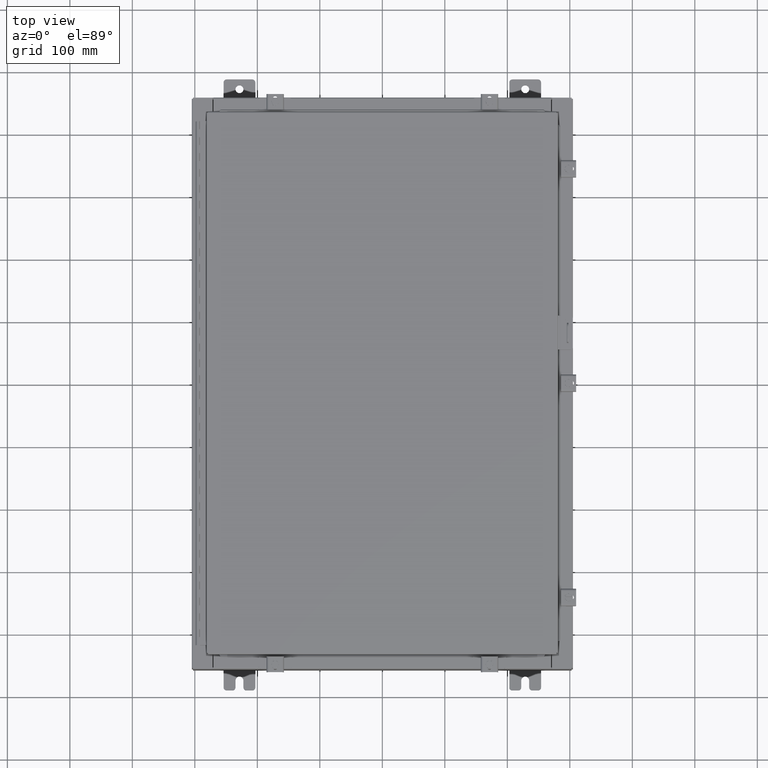
[diagram: clean part render]
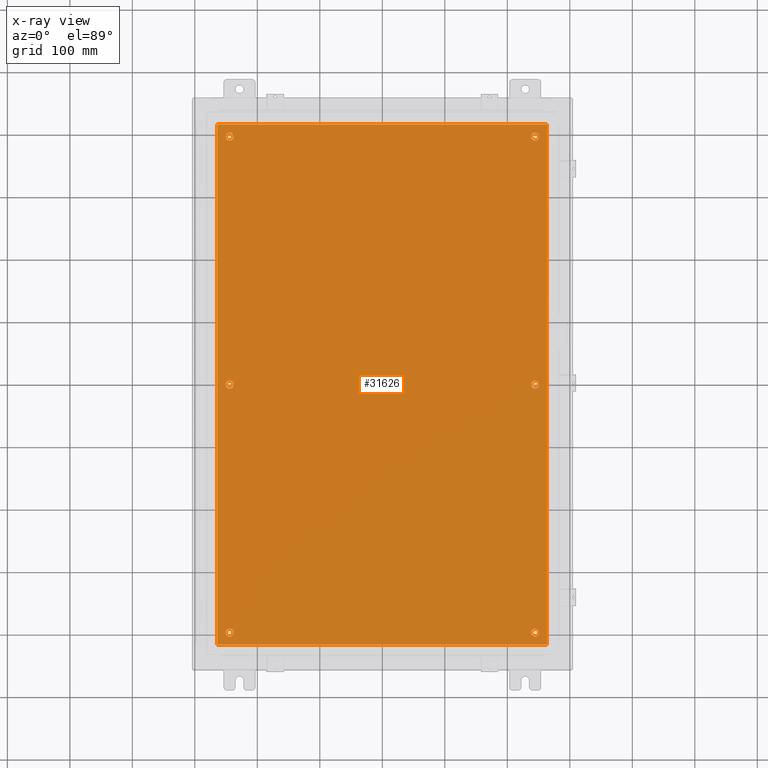
[diagram: x-ray — body ghosted, one internal face saturated and labeled with its STEP entity id]
A machine part, top view, then the same camera in x-ray: the body is ghosted and one INTERNAL B-rep face — a face not visible from any outside direction — is saturated and labeled: STEP entity #31626.
In plain terms, the highlighted planar face has unit normal (0, 0, -1).
Its self-contained STEP definition (entity closure, byte-faithful):
#198 = CARTESIAN_POINT ( 'NONE',  ( 9.875000000000007100, 2.620299400612403500E-015, -0.1039999999999999800 ) ) ;
#259 = CARTESIAN_POINT ( 'NONE',  ( -9.625000000000007100, 15.62500000000000200, -0.1039999999999999800 ) ) ;
#505 = VERTEX_POINT ( 'NONE', #34631 ) ;
#568 = CARTESIAN_POINT ( 'NONE',  ( 9.625000000000007100, 2.620299400612403500E-015, -0.1039999999999999800 ) ) ;
#889 = DIRECTION ( 'NONE',  ( -0.0000000000000000000, -0.0000000000000000000, 1.000000000000000000 ) ) ;
#942 = ORIENTED_EDGE ( 'NONE', *, *, #11413, .T. ) ;
#1768 = CIRCLE ( 'NONE', #8337, 0.2500000000000008900 ) ;
#2536 = ORIENTED_EDGE ( 'NONE', *, *, #10650, .T. ) ;
#3079 = EDGE_LOOP ( 'NONE', ( #42310, #32393 ) ) ;
#3216 = ORIENTED_EDGE ( 'NONE', *, *, #12240, .T. ) ;
#3257 = AXIS2_PLACEMENT_3D ( 'NONE', #33868, #30023, #9999 ) ;
#3483 = FACE_BOUND ( 'NONE', #29797, .T. ) ;
#3513 = DIRECTION ( 'NONE',  ( -0.0000000000000000000, -0.0000000000000000000, 1.000000000000000000 ) ) ;
#3663 = CIRCLE ( 'NONE', #37118, 0.2500000000000008900 ) ;
#3952 = CARTESIAN_POINT ( 'NONE',  ( -9.875000000000007100, 15.62500000000000200, -0.1039999999999999800 ) ) ;
#4083 = ORIENTED_EDGE ( 'NONE', *, *, #26744, .T. ) ;
#4846 = VERTEX_POINT ( 'NONE', #9053 ) ;
#4949 = LINE ( 'NONE', #20038, #30153 ) ;
#5275 = CARTESIAN_POINT ( 'NONE',  ( -9.625000000000007100, -15.62500000000000200, -0.1039999999999999800 ) ) ;
#5317 = CARTESIAN_POINT ( 'NONE',  ( 9.875000000000007100, -15.62500000000000200, -0.1039999999999999800 ) ) ;
#5398 = CARTESIAN_POINT ( 'NONE',  ( 0.0000000000000000000, 0.0000000000000000000, -0.1039999999999999800 ) ) ;
#6251 = EDGE_LOOP ( 'NONE', ( #39220, #39873 ) ) ;
#6878 = EDGE_CURVE ( 'NONE', #17479, #505, #29046, .T. ) ;
#7147 = CARTESIAN_POINT ( 'NONE',  ( -10.38300000000000100, -16.38299999999999600, -0.1040000000000009100 ) ) ;
#8154 = AXIS2_PLACEMENT_3D ( 'NONE', #42337, #35710, #25016 ) ;
#8247 = DIRECTION ( 'NONE',  ( -0.0000000000000000000, -0.0000000000000000000, 1.000000000000000000 ) ) ;
#8266 = CARTESIAN_POINT ( 'NONE',  ( -9.875000000000005300, 2.934704822324310800E-016, -0.1039999999999999800 ) ) ;
#8292 = VERTEX_POINT ( 'NONE', #5317 ) ;
#8337 = AXIS2_PLACEMENT_3D ( 'NONE', #5275, #8247, #11966 ) ;
#9053 = CARTESIAN_POINT ( 'NONE',  ( -10.38300000000000100, 16.38300000000000300, -0.1039999999999987600 ) ) ;
#9488 = EDGE_CURVE ( 'NONE', #42050, #9807, #32545, .T. ) ;
#9807 = VERTEX_POINT ( 'NONE', #22251 ) ;
#9937 = EDGE_LOOP ( 'NONE', ( #38380, #39132 ) ) ;
#9999 = DIRECTION ( 'NONE',  ( -1.000000000000000000, 0.0000000000000000000, 0.0000000000000000000 ) ) ;
#10429 = CIRCLE ( 'NONE', #8154, 0.2499999999999998100 ) ;
#10650 = EDGE_CURVE ( 'NONE', #26525, #13699, #34260, .T. ) ;
#11413 = EDGE_CURVE ( 'NONE', #33928, #20847, #17449, .T. ) ;
#11621 = CARTESIAN_POINT ( 'NONE',  ( -10.38300000000000100, 16.38300000000000300, -0.1039999999999987600 ) ) ;
#11966 = DIRECTION ( 'NONE',  ( -1.000000000000000000, 0.0000000000000000000, 0.0000000000000000000 ) ) ;
#12104 = DIRECTION ( 'NONE',  ( 0.0000000000000000000, 0.0000000000000000000, -1.000000000000000000 ) ) ;
#12240 = EDGE_CURVE ( 'NONE', #13699, #26525, #21619, .T. ) ;
#12358 = FACE_BOUND ( 'NONE', #6251, .T. ) ;
#12439 = DIRECTION ( 'NONE',  ( -0.0000000000000000000, -0.0000000000000000000, 1.000000000000000000 ) ) ;
#12745 = DIRECTION ( 'NONE',  ( -0.0000000000000000000, -0.0000000000000000000, 1.000000000000000000 ) ) ;
#13408 = FACE_BOUND ( 'NONE', #41793, .T. ) ;
#13414 = CIRCLE ( 'NONE', #25017, 0.2499999999999998100 ) ;
#13434 = VECTOR ( 'NONE', #27267, 39.37007874015748100 ) ;
#13495 = DIRECTION ( 'NONE',  ( -0.0000000000000000000, -0.0000000000000000000, 1.000000000000000000 ) ) ;
#13699 = VERTEX_POINT ( 'NONE', #24241 ) ;
#13779 = VERTEX_POINT ( 'NONE', #7147 ) ;
#14144 = CIRCLE ( 'NONE', #3257, 0.2499999999999998100 ) ;
#14563 = AXIS2_PLACEMENT_3D ( 'NONE', #37799, #20465, #29045 ) ;
#14819 = CIRCLE ( 'NONE', #32861, 0.2500000000000008900 ) ;
#15009 = AXIS2_PLACEMENT_3D ( 'NONE', #33584, #16526, #17706 ) ;
#15361 = EDGE_CURVE ( 'NONE', #4846, #13779, #23465, .T. ) ;
#15519 = CIRCLE ( 'NONE', #32773, 0.2499999999999998100 ) ;
#15906 = CARTESIAN_POINT ( 'NONE',  ( 10.38300000000000100, -16.38299999999999600, -0.1040000000000009100 ) ) ;
#16526 = DIRECTION ( 'NONE',  ( -0.0000000000000000000, -0.0000000000000000000, 1.000000000000000000 ) ) ;
#17449 = CIRCLE ( 'NONE', #20490, 0.2500000000000008900 ) ;
#17479 = VERTEX_POINT ( 'NONE', #20309 ) ;
#17530 = EDGE_LOOP ( 'NONE', ( #942, #4083 ) ) ;
#17706 = DIRECTION ( 'NONE',  ( -1.000000000000000000, 0.0000000000000000000, 0.0000000000000000000 ) ) ;
#18776 = LINE ( 'NONE', #39460, #38767 ) ;
#19289 = EDGE_LOOP ( 'NONE', ( #37631, #37714, #36212, #37302 ) ) ;
#19901 = ORIENTED_EDGE ( 'NONE', *, *, #6878, .T. ) ;
#19998 = FACE_OUTER_BOUND ( 'NONE', #19289, .T. ) ;
#20038 = CARTESIAN_POINT ( 'NONE',  ( -10.50000000000000200, -16.38299999999999600, -0.1040000000000009100 ) ) ;
#20309 = CARTESIAN_POINT ( 'NONE',  ( -9.375000000000007100, -15.62500000000000200, -0.1039999999999999800 ) ) ;
#20465 = DIRECTION ( 'NONE',  ( -0.0000000000000000000, -0.0000000000000000000, 1.000000000000000000 ) ) ;
#20490 = AXIS2_PLACEMENT_3D ( 'NONE', #30443, #12439, #38998 ) ;
#20847 = VERTEX_POINT ( 'NONE', #8266 ) ;
#20883 = DIRECTION ( 'NONE',  ( -0.0000000000000000000, -0.0000000000000000000, 1.000000000000000000 ) ) ;
#21286 = DIRECTION ( 'NONE',  ( 0.0000000000000000000, 1.000000000000000000, 0.0000000000000000000 ) ) ;
#21619 = CIRCLE ( 'NONE', #14563, 0.2499999999999998100 ) ;
#22251 = CARTESIAN_POINT ( 'NONE',  ( 10.38300000000000100, 16.38300000000000300, -0.1040000000000009100 ) ) ;
#22791 = CARTESIAN_POINT ( 'NONE',  ( 9.875000000000007100, 15.62500000000000200, -0.1039999999999999800 ) ) ;
#23269 = CARTESIAN_POINT ( 'NONE',  ( 9.625000000000007100, 15.62500000000000200, -0.1039999999999999800 ) ) ;
#23465 = LINE ( 'NONE', #11621, #13434 ) ;
#23953 = EDGE_CURVE ( 'NONE', #8292, #37373, #14144, .T. ) ;
#24241 = CARTESIAN_POINT ( 'NONE',  ( 9.375000000000007100, 2.650915570591087300E-015, -0.1039999999999999800 ) ) ;
#24459 = CIRCLE ( 'NONE', #15009, 0.2500000000000008900 ) ;
#24532 = EDGE_CURVE ( 'NONE', #9807, #4846, #18776, .T. ) ;
#25016 = DIRECTION ( 'NONE',  ( -1.000000000000000000, 0.0000000000000000000, 0.0000000000000000000 ) ) ;
#25017 = AXIS2_PLACEMENT_3D ( 'NONE', #33030, #13495, #36406 ) ;
#25463 = DIRECTION ( 'NONE',  ( -1.000000000000000000, 0.0000000000000000000, 0.0000000000000000000 ) ) ;
#26058 = EDGE_CURVE ( 'NONE', #505, #17479, #1768, .T. ) ;
#26341 = CARTESIAN_POINT ( 'NONE',  ( -9.625000000000007100, -15.62500000000000200, -0.1039999999999999800 ) ) ;
#26525 = VERTEX_POINT ( 'NONE', #198 ) ;
#26539 = DIRECTION ( 'NONE',  ( -1.000000000000000000, 0.0000000000000000000, 0.0000000000000000000 ) ) ;
#26744 = EDGE_CURVE ( 'NONE', #20847, #33928, #24459, .T. ) ;
#27136 = AXIS2_PLACEMENT_3D ( 'NONE', #568, #889, #41114 ) ;
#27267 = DIRECTION ( 'NONE',  ( 0.0000000000000000000, -1.000000000000000000, 0.0000000000000000000 ) ) ;
#28311 = CARTESIAN_POINT ( 'NONE',  ( 9.375000000000007100, -15.62500000000000200, -0.1039999999999999800 ) ) ;
#28385 = PLANE ( 'NONE',  #38946 ) ;
#28422 = CARTESIAN_POINT ( 'NONE',  ( -9.375000000000005300, 2.628543122537473900E-016, -0.1039999999999999800 ) ) ;
#28693 = FACE_BOUND ( 'NONE', #9937, .T. ) ;
#29045 = DIRECTION ( 'NONE',  ( -1.000000000000000000, 0.0000000000000000000, 0.0000000000000000000 ) ) ;
#29046 = CIRCLE ( 'NONE', #30647, 0.2500000000000008900 ) ;
#29092 = CARTESIAN_POINT ( 'NONE',  ( -9.375000000000007100, 15.62500000000000200, -0.1039999999999999800 ) ) ;
#29557 = EDGE_CURVE ( 'NONE', #32712, #35649, #3663, .T. ) ;
#29590 = EDGE_CURVE ( 'NONE', #37373, #8292, #10429, .T. ) ;
#29726 = FACE_BOUND ( 'NONE', #17530, .T. ) ;
#29797 = EDGE_LOOP ( 'NONE', ( #19901, #34451 ) ) ;
#30023 = DIRECTION ( 'NONE',  ( -0.0000000000000000000, -0.0000000000000000000, 1.000000000000000000 ) ) ;
#30153 = VECTOR ( 'NONE', #33298, 39.37007874015748100 ) ;
#30443 = CARTESIAN_POINT ( 'NONE',  ( -9.625000000000005300, 2.628543122537473900E-016, -0.1039999999999999800 ) ) ;
#30647 = AXIS2_PLACEMENT_3D ( 'NONE', #26341, #36966, #25463 ) ;
#31626 = ADVANCED_FACE ( 'NONE', ( #13408, #29726, #3483, #37509, #12358, #28693, #19998 ), #28385, .T. ) ;
#32246 = CARTESIAN_POINT ( 'NONE',  ( -9.625000000000007100, 15.62500000000000200, -0.1039999999999999800 ) ) ;
#32384 = EDGE_CURVE ( 'NONE', #35875, #40902, #13414, .T. ) ;
#32393 = ORIENTED_EDGE ( 'NONE', *, *, #29590, .T. ) ;
#32545 = LINE ( 'NONE', #33752, #36300 ) ;
#32712 = VERTEX_POINT ( 'NONE', #29092 ) ;
#32773 = AXIS2_PLACEMENT_3D ( 'NONE', #23269, #3513, #26539 ) ;
#32861 = AXIS2_PLACEMENT_3D ( 'NONE', #32246, #12745, #35645 ) ;
#33030 = CARTESIAN_POINT ( 'NONE',  ( 9.625000000000007100, 15.62500000000000200, -0.1039999999999999800 ) ) ;
#33298 = DIRECTION ( 'NONE',  ( 1.000000000000000000, -0.0000000000000000000, -0.0000000000000000000 ) ) ;
#33375 = CARTESIAN_POINT ( 'NONE',  ( 9.375000000000007100, 15.62500000000000200, -0.1039999999999999800 ) ) ;
#33584 = CARTESIAN_POINT ( 'NONE',  ( -9.625000000000005300, 2.628543122537473900E-016, -0.1039999999999999800 ) ) ;
#33752 = CARTESIAN_POINT ( 'NONE',  ( 10.38300000000000100, -16.38299999999999600, -0.1040000000000009100 ) ) ;
#33868 = CARTESIAN_POINT ( 'NONE',  ( 9.625000000000007100, -15.62500000000000200, -0.1039999999999999800 ) ) ;
#33928 = VERTEX_POINT ( 'NONE', #28422 ) ;
#34260 = CIRCLE ( 'NONE', #27136, 0.2499999999999998100 ) ;
#34451 = ORIENTED_EDGE ( 'NONE', *, *, #26058, .T. ) ;
#34567 = DIRECTION ( 'NONE',  ( -1.000000000000000000, -0.0000000000000000000, -0.0000000000000000000 ) ) ;
#34631 = CARTESIAN_POINT ( 'NONE',  ( -9.875000000000007100, -15.62500000000000200, -0.1039999999999999800 ) ) ;
#34993 = DIRECTION ( 'NONE',  ( -1.000000000000000000, 0.0000000000000000000, -0.0000000000000000000 ) ) ;
#35400 = EDGE_CURVE ( 'NONE', #35649, #32712, #14819, .T. ) ;
#35645 = DIRECTION ( 'NONE',  ( -1.000000000000000000, 0.0000000000000000000, 0.0000000000000000000 ) ) ;
#35649 = VERTEX_POINT ( 'NONE', #3952 ) ;
#35710 = DIRECTION ( 'NONE',  ( -0.0000000000000000000, -0.0000000000000000000, 1.000000000000000000 ) ) ;
#35875 = VERTEX_POINT ( 'NONE', #33375 ) ;
#35956 = DIRECTION ( 'NONE',  ( -1.000000000000000000, 0.0000000000000000000, 0.0000000000000000000 ) ) ;
#36212 = ORIENTED_EDGE ( 'NONE', *, *, #24532, .F. ) ;
#36300 = VECTOR ( 'NONE', #21286, 39.37007874015748100 ) ;
#36406 = DIRECTION ( 'NONE',  ( -1.000000000000000000, 0.0000000000000000000, 0.0000000000000000000 ) ) ;
#36966 = DIRECTION ( 'NONE',  ( -0.0000000000000000000, -0.0000000000000000000, 1.000000000000000000 ) ) ;
#37118 = AXIS2_PLACEMENT_3D ( 'NONE', #259, #20883, #35956 ) ;
#37302 = ORIENTED_EDGE ( 'NONE', *, *, #9488, .F. ) ;
#37373 = VERTEX_POINT ( 'NONE', #28311 ) ;
#37509 = FACE_BOUND ( 'NONE', #3079, .T. ) ;
#37631 = ORIENTED_EDGE ( 'NONE', *, *, #41024, .F. ) ;
#37714 = ORIENTED_EDGE ( 'NONE', *, *, #15361, .F. ) ;
#37799 = CARTESIAN_POINT ( 'NONE',  ( 9.625000000000007100, 2.620299400612403500E-015, -0.1039999999999999800 ) ) ;
#38380 = ORIENTED_EDGE ( 'NONE', *, *, #29557, .T. ) ;
#38767 = VECTOR ( 'NONE', #34567, 39.37007874015748100 ) ;
#38946 = AXIS2_PLACEMENT_3D ( 'NONE', #5398, #12104, #34993 ) ;
#38998 = DIRECTION ( 'NONE',  ( -1.000000000000000000, 0.0000000000000000000, 0.0000000000000000000 ) ) ;
#39061 = EDGE_CURVE ( 'NONE', #40902, #35875, #15519, .T. ) ;
#39132 = ORIENTED_EDGE ( 'NONE', *, *, #35400, .T. ) ;
#39220 = ORIENTED_EDGE ( 'NONE', *, *, #39061, .T. ) ;
#39460 = CARTESIAN_POINT ( 'NONE',  ( 10.50000000000000400, 16.38299999999999900, -0.1040000000000009100 ) ) ;
#39873 = ORIENTED_EDGE ( 'NONE', *, *, #32384, .T. ) ;
#40902 = VERTEX_POINT ( 'NONE', #22791 ) ;
#41024 = EDGE_CURVE ( 'NONE', #13779, #42050, #4949, .T. ) ;
#41114 = DIRECTION ( 'NONE',  ( -1.000000000000000000, 0.0000000000000000000, 0.0000000000000000000 ) ) ;
#41793 = EDGE_LOOP ( 'NONE', ( #2536, #3216 ) ) ;
#42050 = VERTEX_POINT ( 'NONE', #15906 ) ;
#42310 = ORIENTED_EDGE ( 'NONE', *, *, #23953, .T. ) ;
#42337 = CARTESIAN_POINT ( 'NONE',  ( 9.625000000000007100, -15.62500000000000200, -0.1039999999999999800 ) ) ;